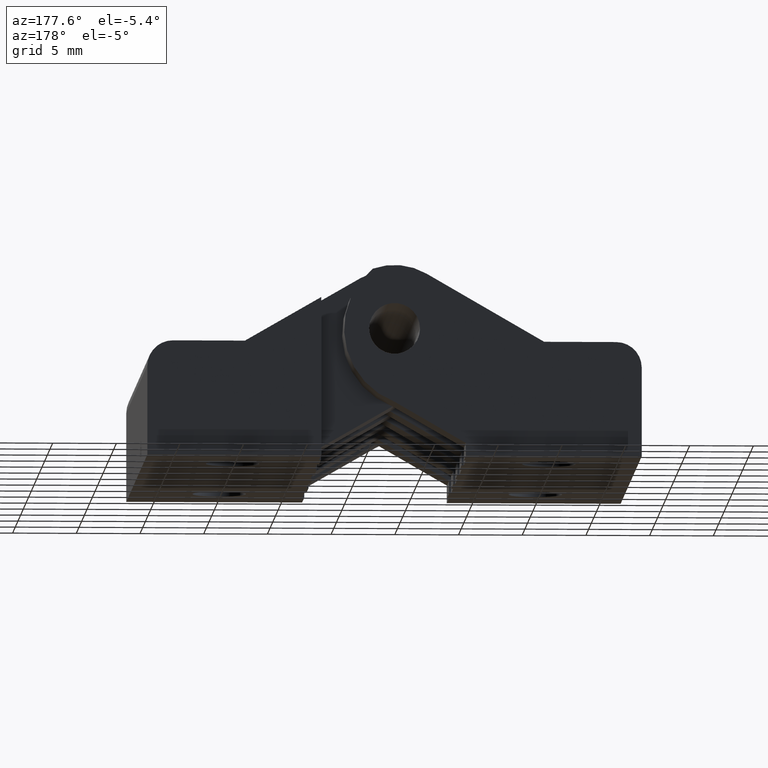
[diagram: clean part render]
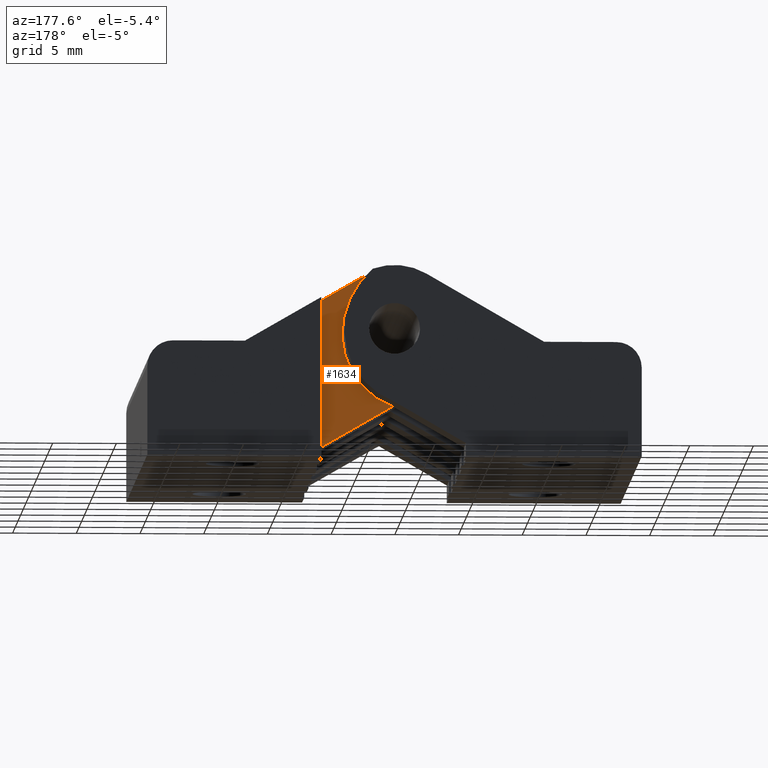
[diagram: same view with one face highlighted and labeled with its STEP entity id]
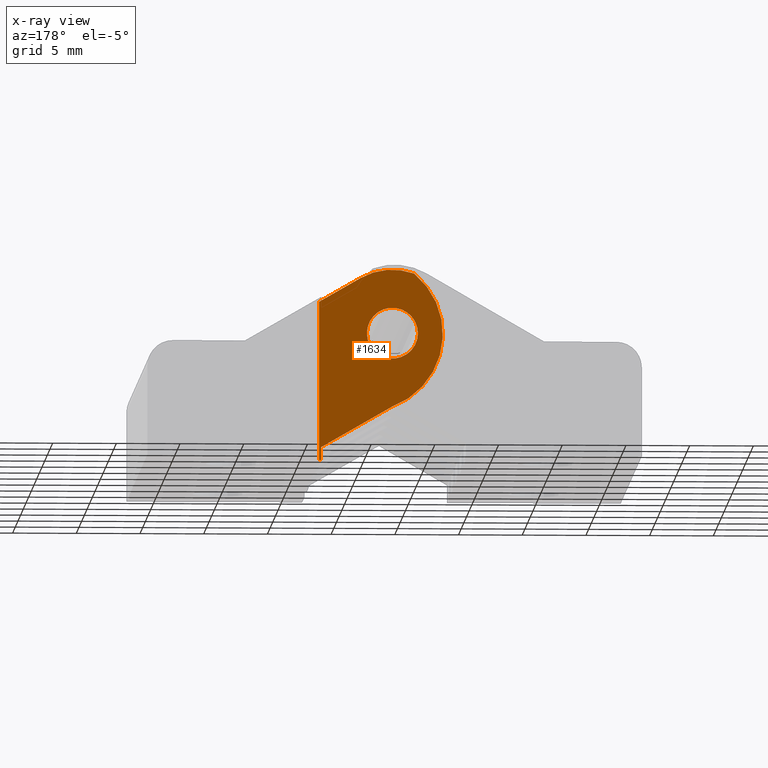
[diagram: x-ray of the same camera — body ghosted, the highlighted face saturated]
A machine part, auxiliary view. The second image highlights one B-rep face of the part: STEP entity #1634.
The next image is the same camera in x-ray: the body ghosted, the highlighted face saturated — about 0% of this face is hidden behind the body in this view.
In plain terms, the highlighted planar face has unit normal (0, -1, 0).
Its self-contained STEP definition (entity closure, byte-faithful):
#49=CARTESIAN_POINT('',(12.399999999950438,2.799999999972443,4.233161507444947));
#50=VERTEX_POINT('',#49);
#68=CARTESIAN_POINT('',(10.700026787184100,2.799999999972443,14.708801062030460));
#69=VERTEX_POINT('',#68);
#76=CARTESIAN_POINT('',(14.565363849789865,2.799999999972444,9.960308449534752));
#77=DIRECTION('',(0.0,1.000000000000000,-6.123234E-017));
#78=DIRECTION('',(-0.631299389615373,4.748808E-017,0.775539219299229));
#79=AXIS2_PLACEMENT_3D('',#76,#77,#78);
#80=CIRCLE('',#79,6.122827181823769);
#81=EDGE_CURVE('',#50,#69,#80,.T.);
#248=CARTESIAN_POINT('',(17.999999999928093,2.799999999972442,0.999999999995964));
#249=VERTEX_POINT('',#248);
#250=CARTESIAN_POINT('',(12.399999999950438,2.799999999972443,4.233161507444947));
#251=DIRECTION('',(0.866025403784440,0.0,-0.499999999999998));
#252=VECTOR('',#251,6.466323014897997);
#253=LINE('',#250,#252);
#254=EDGE_CURVE('',#50,#249,#253,.T.);
#403=CARTESIAN_POINT('',(17.999999999928065,2.799999999972442,-1.714506E-016));
#404=VERTEX_POINT('',#403);
#405=CARTESIAN_POINT('',(17.999999999928093,2.799999999972442,0.999999999995964));
#406=DIRECTION('',(0.0,0.0,-1.0));
#407=VECTOR('',#406,0.999999999995964);
#408=LINE('',#405,#407);
#409=EDGE_CURVE('',#249,#404,#408,.T.);
#636=CARTESIAN_POINT('',(18.153425809773296,2.799999999972442,-1.714506E-016));
#637=VERTEX_POINT('',#636);
#638=CARTESIAN_POINT('',(17.999999999928065,2.799999999972442,-1.714506E-016));
#639=DIRECTION('',(1.0,0.0,0.0));
#640=VECTOR('',#639,0.153425809845231);
#641=LINE('',#638,#640);
#642=EDGE_CURVE('',#404,#637,#641,.T.);
#918=CARTESIAN_POINT('',(18.153425809773296,2.799999999972443,12.458424951127569));
#919=VERTEX_POINT('',#918);
#926=CARTESIAN_POINT('',(14.899999999940633,2.799999999972443,14.336791218223027));
#927=VERTEX_POINT('',#926);
#928=CARTESIAN_POINT('',(14.899999999940633,2.799999999972443,14.336791218223027));
#929=DIRECTION('',(0.866025403784428,0.0,-0.500000000000019));
#930=VECTOR('',#929,3.756732534190776);
#931=LINE('',#928,#930);
#932=EDGE_CURVE('',#927,#919,#931,.T.);
#1077=CARTESIAN_POINT('',(12.399999999950438,2.799999999972443,10.006664199318038));
#1078=DIRECTION('',(0.0,1.0,-6.123234E-017));
#1079=DIRECTION('',(0.500000000000019,5.302876E-017,0.866025403784428));
#1080=AXIS2_PLACEMENT_3D('',#1077,#1078,#1079);
#1081=CIRCLE('',#1080,4.999999999980201);
#1082=EDGE_CURVE('',#69,#927,#1081,.T.);
#1589=CARTESIAN_POINT('',(18.153425809773296,2.799999999972442,0.0));
#1590=DIRECTION('',(0.0,0.0,1.0));
#1591=VECTOR('',#1590,12.458424951127565);
#1592=LINE('',#1589,#1591);
#1593=EDGE_CURVE('',#637,#919,#1592,.T.);
#1600=CARTESIAN_POINT('',(-12.326295695528003,2.799999999972442,-7.507360458410204));
#1601=DIRECTION('',(0.0,-1.0,0.0));
#1602=DIRECTION('',(1.0,0.0,0.0));
#1603=AXIS2_PLACEMENT_3D('',#1600,#1601,#1602);
#1604=PLANE('',#1603);
#1605=ORIENTED_EDGE('',*,*,#642,.F.);
#1606=ORIENTED_EDGE('',*,*,#409,.F.);
#1607=ORIENTED_EDGE('',*,*,#254,.F.);
#1608=ORIENTED_EDGE('',*,*,#81,.T.);
#1609=ORIENTED_EDGE('',*,*,#1082,.T.);
#1610=ORIENTED_EDGE('',*,*,#932,.T.);
#1611=ORIENTED_EDGE('',*,*,#1593,.F.);
#1612=EDGE_LOOP('',(#1605,#1606,#1607,#1608,#1609,#1610,#1611));
#1613=FACE_OUTER_BOUND('',#1612,.T.);
#1614=CARTESIAN_POINT('',(10.399999999958425,2.799999999972443,10.006664199318038));
#1615=VERTEX_POINT('',#1614);
#1616=CARTESIAN_POINT('',(14.399999999942452,2.799999999972443,10.006664199318038));
#1617=VERTEX_POINT('',#1616);
#1618=CARTESIAN_POINT('',(12.399999999950438,2.799999999972443,10.006664199318038));
#1619=DIRECTION('',(0.0,1.0,-6.123234E-017));
#1620=DIRECTION('',(1.0,0.0,0.0));
#1621=AXIS2_PLACEMENT_3D('',#1618,#1619,#1620);
#1622=CIRCLE('',#1621,1.999999999992014);
#1623=EDGE_CURVE('',#1615,#1617,#1622,.T.);
#1624=ORIENTED_EDGE('',*,*,#1623,.F.);
#1625=CARTESIAN_POINT('',(12.399999999950438,2.799999999972443,10.006664199318038));
#1626=DIRECTION('',(0.0,1.0,-6.123234E-017));
#1627=DIRECTION('',(1.0,0.0,0.0));
#1628=AXIS2_PLACEMENT_3D('',#1625,#1626,#1627);
#1629=CIRCLE('',#1628,1.999999999992014);
#1630=EDGE_CURVE('',#1617,#1615,#1629,.T.);
#1631=ORIENTED_EDGE('',*,*,#1630,.F.);
#1632=EDGE_LOOP('',(#1624,#1631));
#1633=FACE_BOUND('',#1632,.T.);
#1634=ADVANCED_FACE('',(#1613,#1633),#1604,.F.);